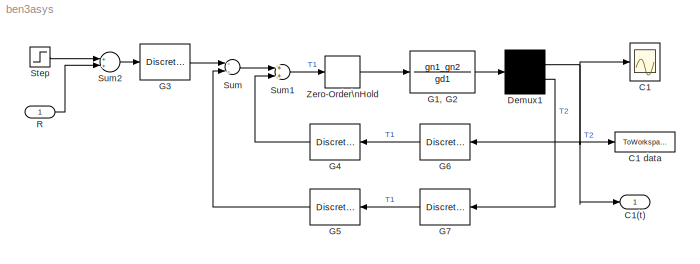
MODEL ben3asys
KIND model
CONFIG PreLoadFcn = ben3adat
BLOCK [Scope] C1
  DataFormat = Array
  NumInputPorts = 1
  Ports = [1]
  TickLabels = on
  YMax = 1.4
  YMin = 0
BLOCK [ToWorkspace] C1 data
  MaxDataPoints = 12000
  SampleTime = -1
  SaveFormat = Array
  VariableName = C1_data
BLOCK [Outport] C1(t)
  IconDisplay = Port number
  InitialOutput = 0
BLOCK [Demux] Demux1
  Outputs = 2
  Ports = [1, 2]
BLOCK [TransferFcn] G1, G2
  Denominator = gd1
  Numerator = gn1_gn2
BLOCK [DiscreteTransferFcn] G3
  Denominator = gd3
  Numerator = gn3
  SampleTime = [T1,offT1]
BLOCK [DiscreteTransferFcn] G4
  Denominator = gd4
  Numerator = gn4
  SampleTime = [T1,offT1]
BLOCK [DiscreteTransferFcn] G5
  Denominator = gd5
  Numerator = gn5
  SampleTime = [T1,offT1]
BLOCK [DiscreteTransferFcn] G6
  Denominator = gd6
  Numerator = gn6
  SampleTime = [T2,offT2]
BLOCK [DiscreteTransferFcn] G7
  Denominator = gd7
  Numerator = gn7
  SampleTime = [T2,offT2]
BLOCK [Inport] R
  IconDisplay = Port number
  LatchInput = off
  Port = 1
BLOCK [Step] Step
  SampleTime = 0
  Time = 0
BLOCK [Sum] Sum
  Inputs = --
  Ports = [2, 1]
BLOCK [Sum] Sum1
  Inputs = 2
  Ports = [2, 1]
BLOCK [Sum] Sum2
  Ports = [2, 1]
BLOCK [ZeroOrderHold] Zero-Order\nHold
  SampleTime = [T1,offZOH]
NET Demux1:1 -> C1 data:1, C1(t):1, C1:1, G6:1
LINE Demux1:2 -> G7:1
LINE G1, G2:1 -> Demux1:1
LINE G3:1 -> Sum:1
LINE G4:1 -> Sum1:2
LINE G5:1 -> Sum:2
LINE G6:1 -> G4:1
LINE G7:1 -> G5:1
LINE R:1 -> Sum2:2
LINE Step:1 -> Sum2:1
LINE Sum1:1 -> Zero-Order\nHold:1
LINE Sum2:1 -> G3:1
LINE Sum:1 -> Sum1:1
LINE Zero-Order\nHold:1 -> G1, G2:1
note: NET lines group one-source signal fan-out (src -> all destinations, sorted); 1:1 wires keep LINE
